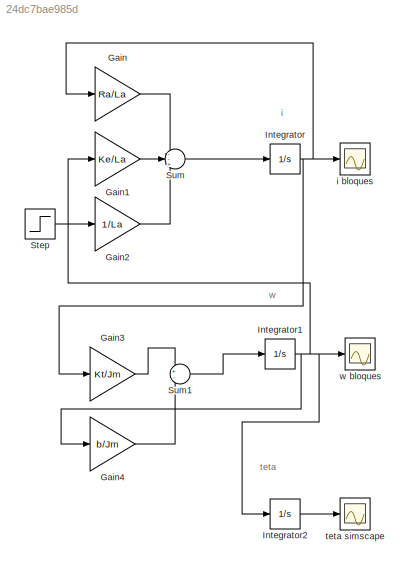
MODEL slx_24dc7bae985d
KIND model
CONFIG AbsTol = auto
CONFIG EnableMultiTasking = off
CONFIG FixedStep = auto
CONFIG InitFcn = Ra = 2;\nKt = 0.01;\nb = 0.0012;\nLa = 0.023;\nKe = 0.01;\nJm = 0.001;
CONFIG MaxStep = auto
CONFIG MinStep = auto
CONFIG RelTol = 1e-3
CONFIG SampleTimeConstraint = Unconstrained
CONFIG SolverName = VariableStepAuto
CONFIG StartTime = 0.0
CONFIG StopTime = 10.0
BLOCK [Gain] Gain
  Gain = Ra/La
BLOCK [Gain] Gain1
  Gain = Ke/La
BLOCK [Gain] Gain2
  Gain = 1/La
BLOCK [Gain] Gain3
  Gain = Kt/Jm
BLOCK [Gain] Gain4
  Gain = b/Jm
BLOCK [Integrator] Integrator
BLOCK [Integrator] Integrator1
BLOCK [Integrator] Integrator2
BLOCK [Step] Step
  Before = 1
  SampleTime = 0
BLOCK [Sum] Sum
  Inputs = --+
BLOCK [Sum] Sum1
  Inputs = +-
BLOCK [Scope] i bloques
  ActiveDisplayYMaximum = 0.56043569523692915
  ActiveDisplayYMinimum = -0.062270632804103228
  Floating = off
  GraphicalSettings = {"Style":{"BackgroundColor":[0.12941176470588237,0.12941176470588237,0.12941176470588237],"AxesColor":[0.07058823529411765,0.07058823529411765,0.07058823529411765],"LabelsColor":[0.8509803921568627,0.8509803921568627,0.8509803921568627],"PreserveColors":false,"Visible":[true],"LineStyle":["-"],"LineWidth":[1.5],"BarWidth":[0.9],"LineColor":["auto"],"LineFaceAlpha":[1],"LineEdgeAlpha":[1],"Marker":...<+1902ch>
  MultipleDisplayCache = [{"MaxYLimMag":0.56043569523692915,"MaxYLimReal":0.56043569523692915,"MinYLimMag":0,"MinYLimReal":-0.062270632804103228,"PlotAsMagnitudePhase":false,"ShowGrid":true,"ShowLegend":false,"Title":"%<SignalLabel>","YLabel":""}]
  NumInputPorts = 1
  ScopeFrameLocation = window
  WasSavedAsWebScope = on
  WindowPosition = [1049.000000,370.000000,560.000000,420.000000,]
BLOCK [Scope] teta simscape
  ActiveDisplayYMaximum = 41.350333377479
  ActiveDisplayYMinimum = -4.5944814863865542
  DataLoggingVariableName = ScopeData2
  Floating = off
  GraphicalSettings = {"Style":{"BackgroundColor":[0.12941176470588237,0.12941176470588237,0.12941176470588237],"AxesColor":[0.07058823529411765,0.07058823529411765,0.07058823529411765],"LabelsColor":[0.8509803921568627,0.8509803921568627,0.8509803921568627],"PreserveColors":false,"Visible":[true],"LineStyle":["-"],"LineWidth":[1.5],"BarWidth":[0.9],"LineColor":["auto"],"LineFaceAlpha":[1],"LineEdgeAlpha":[1],"Marker":...<+1904ch>
  MultipleDisplayCache = [{"MaxYLimMag":41.350333377479,"MaxYLimReal":41.350333377479,"MinYLimMag":0,"MinYLimReal":-4.5944814863865542,"PlotAsMagnitudePhase":false,"ShowGrid":true,"ShowLegend":false,"Title":"%<SignalLabel>","YLabel":""}]
  NumInputPorts = 1
  ScopeFrameLocation = window
  WasSavedAsWebScope = on
  WindowPosition = [446.000000,110.000000,1073.000000,789.000000,]
BLOCK [Scope] w bloques
  ActiveDisplayYMaximum = 4.5000463162985795
  ActiveDisplayYMinimum = -0.5000051462553976
  DataLoggingVariableName = ScopeData1
  Floating = off
  GraphicalSettings = {"Style":{"BackgroundColor":[0.12941176470588237,0.12941176470588237,0.12941176470588237],"AxesColor":[0.07058823529411765,0.07058823529411765,0.07058823529411765],"LabelsColor":[0.8509803921568627,0.8509803921568627,0.8509803921568627],"PreserveColors":false,"Visible":[true],"LineStyle":["-"],"LineWidth":[1.5],"BarWidth":[0.9],"LineColor":["auto"],"LineFaceAlpha":[1],"LineEdgeAlpha":[1],"Marker":...<+2006ch>
  MultipleDisplayCache = [{"MaxYLimMag":4.5000463162985795,"MaxYLimReal":4.5000463162985795,"MinYLimMag":0,"MinYLimReal":-0.5000051462553976,"PlotAsMagnitudePhase":false,"ShowGrid":true,"ShowLegend":false,"Title":"%<SignalLabel>","YLabel":""}]
  NumInputPorts = 1
  ScopeFrameLocation = window
  WasSavedAsWebScope = on
  WindowPosition = [986.000000,317.000000,560.000000,420.000000,]
ANNOTATION (root): i
ANNOTATION (root): teta
ANNOTATION (root): w
LINE Gain1:1 -> Sum:2
LINE Gain2:1 -> Sum:3
LINE Gain3:1 -> Sum1:1
LINE Gain4:1 -> Sum1:2
LINE Gain:1 -> Sum:1
NET Integrator1:1 -> Gain1:1, Gain4:1, Integrator2:1, w bloques:1
LINE Integrator2:1 -> teta simscape:1
NET Integrator:1 -> Gain3:1, Gain:1, i bloques:1
LINE Step:1 -> Gain2:1
LINE Sum1:1 -> Integrator1:1
LINE Sum:1 -> Integrator:1
note: NET lines group one-source signal fan-out (src -> all destinations, sorted); 1:1 wires keep LINE
